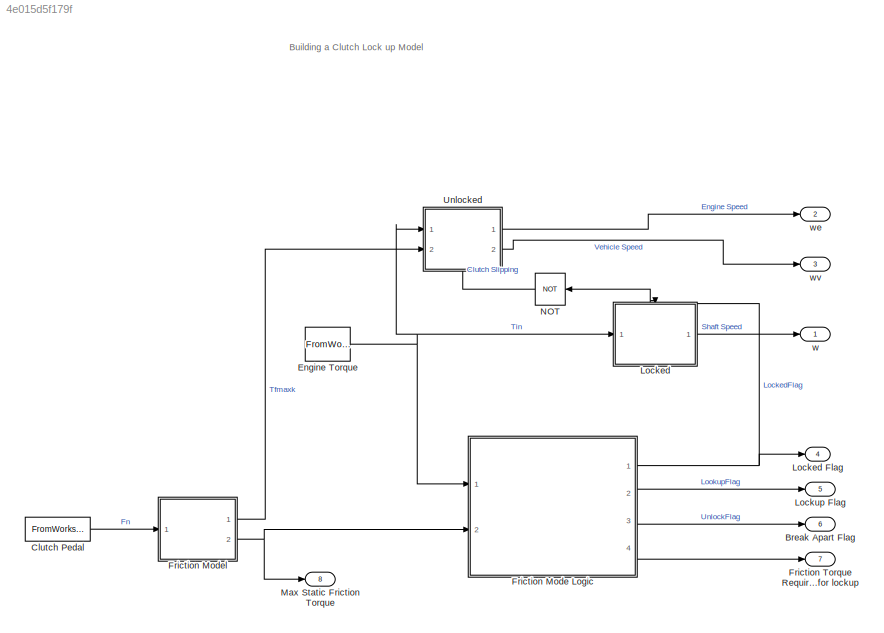
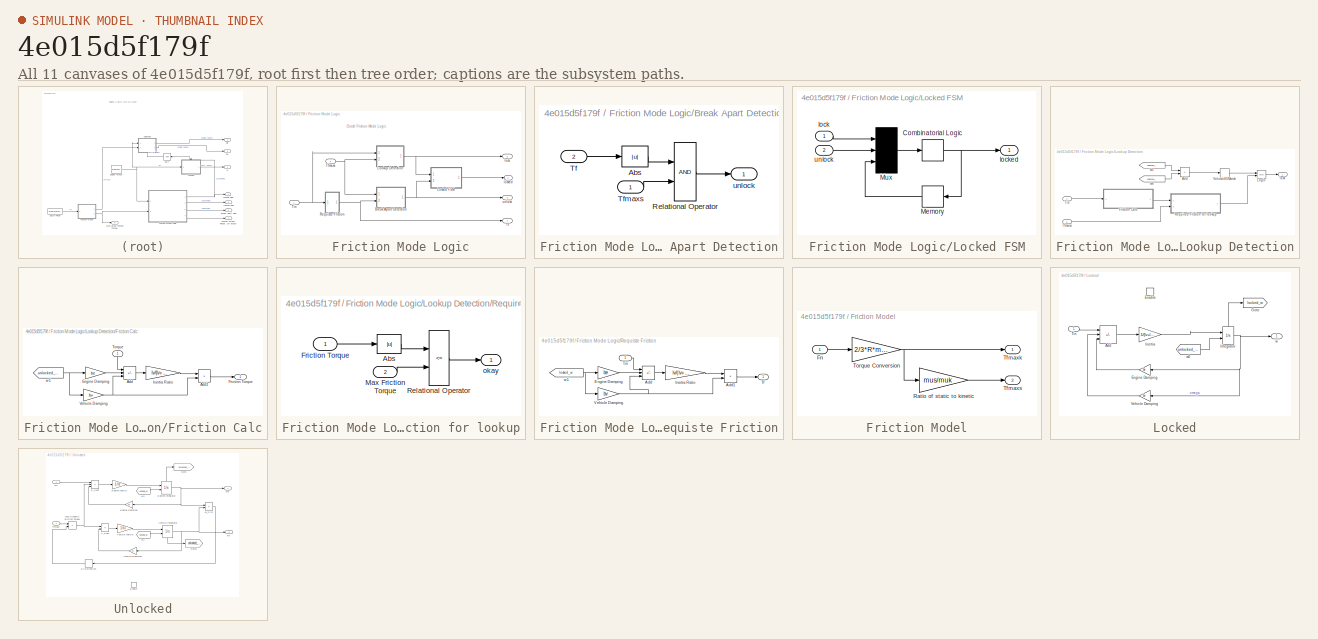
[diagram: thumbnail index - all 11 canvases of the model, root first then tree order]
MODEL slx_4e015d5f179f
KIND model
CONFIG AbsTol = auto
CONFIG EnableMultiTasking = off
CONFIG FixedStep = auto
CONFIG MaxStep = auto
CONFIG MinStep = auto
CONFIG PreLoadFcn = R=1;\nbe=2;\nbv=1;\nIe=1;\nIv=5;
CONFIG RelTol = 1e-3
CONFIG SampleTimeConstraint = Unconstrained
CONFIG SolverName = VariableStepAuto
CONFIG StartTime = 0.0
CONFIG StopTime = 10.0
WORKSPACE source: mxarray member
WORKSPACE Fn: Simulink.Parameter (value not decoded)
WORKSPACE R: Simulink.Parameter (value not decoded)
WORKSPACE Tin: Simulink.Parameter (value not decoded)
WORKSPACE be: Simulink.Parameter (value not decoded)
WORKSPACE bv: Simulink.Parameter (value not decoded)
WORKSPACE f1: Simulink.Parameter (value not decoded)
WORKSPACE le: Simulink.Parameter (value not decoded)
WORKSPACE lv: Simulink.Parameter (value not decoded)
WORKSPACE muk: Simulink.Parameter (value not decoded)
WORKSPACE mus: Simulink.Parameter (value not decoded)
BLOCK [Outport] Break Apart Flag
  Port = 6
BLOCK [FromWorkspace] Clutch Pedal
  VariableName = Fn
BLOCK [FromWorkspace] Engine Torque
  VariableName = Tin
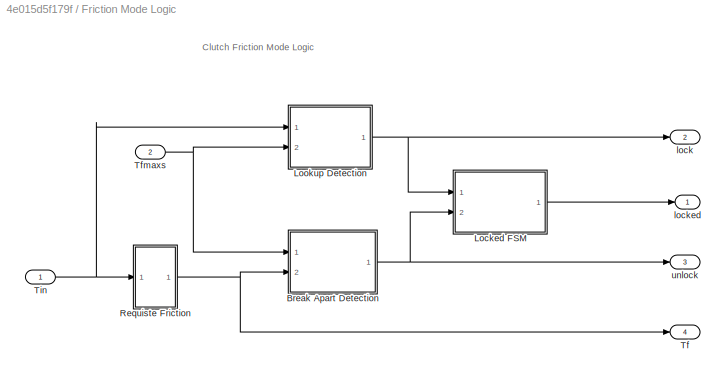
BLOCK [SubSystem] Friction Mode Logic
  Ports = [2, 4]
  RequestExecContextInheritance = off
BLOCK [SubSystem] Friction Mode Logic/Break Apart Detection
  Ports = [2, 1]
  RequestExecContextInheritance = off
BLOCK [Abs] Friction Mode Logic/Break Apart Detection/Abs
BLOCK [RelationalOperator] Friction Mode Logic/Break Apart Detection/Relational Operator
  OutDataTypeStr = boolean
  Ports = [2, 1]
BLOCK [Inport] Friction Mode Logic/Break Apart Detection/Tf
  Port = 2
BLOCK [Inport] Friction Mode Logic/Break Apart Detection/Tfmaxs
BLOCK [Outport] Friction Mode Logic/Break Apart Detection/unlock
  InitialOutput = 0
  VectorParamsAs1DForOutWhenUnconnected = off
BLOCK [SubSystem] Friction Mode Logic/Locked FSM
  Ports = [2, 1]
  RequestExecContextInheritance = off
BLOCK [CombinatorialLogic] Friction Mode Logic/Locked FSM/Combinatorial Logic
  TruthTable = [0;1;0;0;1;1;1;0]
BLOCK [Memory] Friction Mode Logic/Locked FSM/Memory
BLOCK [Mux] Friction Mode Logic/Locked FSM/Mux
  Inputs = 3
  Ports = [3, 1]
BLOCK [Inport] Friction Mode Logic/Locked FSM/lock
  NameLocation = top
BLOCK [Outport] Friction Mode Logic/Locked FSM/locked
  InitialOutput = 0
  VectorParamsAs1DForOutWhenUnconnected = off
BLOCK [Inport] Friction Mode Logic/Locked FSM/unlock
  Port = 2
BLOCK [SubSystem] Friction Mode Logic/Lookup Detection
  Ports = [2, 1]
  RequestExecContextInheritance = off
BLOCK [Sum] Friction Mode Logic/Lookup Detection/Add
  IconShape = rectangular
  Inputs = +-
  Ports = [2, 1]
BLOCK [SubSystem] Friction Mode Logic/Lookup Detection/Friction Calc
  Ports = [1, 1]
  RequestExecContextInheritance = off
BLOCK [Sum] Friction Mode Logic/Lookup Detection/Friction Calc/Add
  IconShape = rectangular
  Inputs = +--
  Ports = [3, 1]
BLOCK [Sum] Friction Mode Logic/Lookup Detection/Friction Calc/Add1
  IconShape = rectangular
  Ports = [2, 1]
BLOCK [Gain] Friction Mode Logic/Lookup Detection/Friction Calc/Engine Damping
  Gain = be
  NameLocation = top
  OutDataTypeStr = Inherit: Same as input
  ParamDataTypeStr = Inherit: Same as input
  SaturateOnIntegerOverflow = on
BLOCK [Outport] Friction Mode Logic/Lookup Detection/Friction Calc/Friction Torque
  InitialOutput = 0
  VectorParamsAs1DForOutWhenUnconnected = off
BLOCK [Gain] Friction Mode Logic/Lookup Detection/Friction Calc/Inertia Ratio
  Gain = lv/(lv+le)
  OutDataTypeStr = Inherit: Same as input
  ParamDataTypeStr = Inherit: Same as input
  SaturateOnIntegerOverflow = on
BLOCK [Inport] Friction Mode Logic/Lookup Detection/Friction Calc/Torque
  NameLocation = left
BLOCK [Gain] Friction Mode Logic/Lookup Detection/Friction Calc/Vehicle Damping
  Gain = bv
  OutDataTypeStr = Inherit: Same as input
  ParamDataTypeStr = Inherit: Same as input
  SaturateOnIntegerOverflow = on
BLOCK [From] Friction Mode Logic/Lookup Detection/Friction Calc/w1
  GotoTag = unlocked_we
BLOCK [Logic] Friction Mode Logic/Lookup Detection/Logic
  AttributesFormatString = (%<Operator>)
  IconShape = distinctive
  OutDataTypeStr = boolean
  Ports = [2, 1]
BLOCK [SubSystem] Friction Mode Logic/Lookup Detection/Required Friction for lookup
  Ports = [2, 1]
  RequestExecContextInheritance = off
BLOCK [Abs] Friction Mode Logic/Lookup Detection/Required Friction for lookup/Abs
BLOCK [Inport] Friction Mode Logic/Lookup Detection/Required Friction for lookup/Friction Torque
BLOCK [Inport] Friction Mode Logic/Lookup Detection/Required Friction for lookup/Max Friction Torque
  Port = 2
BLOCK [RelationalOperator] Friction Mode Logic/Lookup Detection/Required Friction for lookup/Relational Operator
  Operator = <=
  OutDataTypeStr = boolean
  Ports = [2, 1]
BLOCK [Outport] Friction Mode Logic/Lookup Detection/Required Friction for lookup/okay
  InitialOutput = 0
  VectorParamsAs1DForOutWhenUnconnected = off
BLOCK [Inport] Friction Mode Logic/Lookup Detection/Tfmaxs
  Port = 2
BLOCK [Inport] Friction Mode Logic/Lookup Detection/Tin
BLOCK [HitCross] Friction Mode Logic/Lookup Detection/Velocities Match
  Ports = [1, 1]
BLOCK [Outport] Friction Mode Logic/Lookup Detection/lock
  InitialOutput = 0
  VectorParamsAs1DForOutWhenUnconnected = off
BLOCK [From] Friction Mode Logic/Lookup Detection/w1
  GotoTag = unlocked_we
BLOCK [From] Friction Mode Logic/Lookup Detection/w6
  GotoTag = unlocked_wv
BLOCK [SubSystem] Friction Mode Logic/Requiste Friction
  Ports = [1, 1]
  RequestExecContextInheritance = off
BLOCK [Sum] Friction Mode Logic/Requiste Friction/Add
  IconShape = rectangular
  Inputs = +--
  Ports = [3, 1]
BLOCK [Sum] Friction Mode Logic/Requiste Friction/Add1
  IconShape = rectangular
  Ports = [2, 1]
BLOCK [Gain] Friction Mode Logic/Requiste Friction/Engine Damping
  Gain = be
  NameLocation = top
  OutDataTypeStr = Inherit: Same as input
  ParamDataTypeStr = Inherit: Same as input
  SaturateOnIntegerOverflow = on
BLOCK [Gain] Friction Mode Logic/Requiste Friction/Inertia Ratio
  Gain = lv/(lv+le)
  OutDataTypeStr = Inherit: Same as input
  ParamDataTypeStr = Inherit: Same as input
  SaturateOnIntegerOverflow = on
BLOCK [Outport] Friction Mode Logic/Requiste Friction/Tf
  InitialOutput = 0
  VectorParamsAs1DForOutWhenUnconnected = off
BLOCK [Inport] Friction Mode Logic/Requiste Friction/Tin
BLOCK [Gain] Friction Mode Logic/Requiste Friction/Vehicle Damping
  Gain = bv
  OutDataTypeStr = Inherit: Same as input
  ParamDataTypeStr = Inherit: Same as input
  SaturateOnIntegerOverflow = on
BLOCK [From] Friction Mode Logic/Requiste Friction/w1
  GotoTag = locked_w
  NameLocation = top
BLOCK [Outport] Friction Mode Logic/Tf
  Port = 4
BLOCK [Inport] Friction Mode Logic/Tfmaxs
  Port = 2
BLOCK [Inport] Friction Mode Logic/Tin
BLOCK [Outport] Friction Mode Logic/lock
  Port = 2
BLOCK [Outport] Friction Mode Logic/locked
  InitialOutput = 0
  VectorParamsAs1DForOutWhenUnconnected = off
BLOCK [Outport] Friction Mode Logic/unlock
  Port = 3
BLOCK [SubSystem] Friction Model
  Ports = [1, 2]
  RequestExecContextInheritance = off
BLOCK [Inport] Friction Model/Fn
BLOCK [Gain] Friction Model/Ratio of static to kinetic
  Gain = mus/muk
  OutDataTypeStr = Inherit: Same as input
  ParamDataTypeStr = Inherit: Same as input
  SaturateOnIntegerOverflow = on
BLOCK [Outport] Friction Model/Tfmaxk
  InitialOutput = 0
  VectorParamsAs1DForOutWhenUnconnected = off
BLOCK [Outport] Friction Model/Tfmaxs
  InitialOutput = 0
  Port = 2
  VectorParamsAs1DForOutWhenUnconnected = off
BLOCK [Gain] Friction Model/Torque Conversion
  Gain = 2/3*R*muk
  OutDataTypeStr = Inherit: Same as input
  ParamDataTypeStr = Inherit: Same as input
  SaturateOnIntegerOverflow = on
BLOCK [Outport] Friction Torque Required for lockup 
  Port = 7
BLOCK [SubSystem] Locked
  Ports = [1, 1, 1]
  RequestExecContextInheritance = off
BLOCK [Outport] Locked Flag
  InitialOutput = 0
  Port = 4
  VectorParamsAs1DForOutWhenUnconnected = off
BLOCK [Sum] Locked/Add
  IconShape = rectangular
  Inputs = +--
  Ports = [3, 1]
BLOCK [EnablePort] Locked/Enable
  Ports = []
BLOCK [Gain] Locked/Engine Damping
  Gain = be
BLOCK [Goto] Locked/Goto
  GotoTag = locked_w
BLOCK [Gain] Locked/Inertia
  Gain = 1/(lv+le)
BLOCK [Integrator] Locked/Integrator
  InitialConditionSource = external
  Ports = [2, 1, 0, 0, 1]
  ShowStatePort = on
BLOCK [Inport] Locked/Tin
BLOCK [Gain] Locked/Vehicle Damping
  Gain = bv
BLOCK [Outport] Locked/w
BLOCK [From] Locked/w0
  GotoTag = unlocked_we
BLOCK [Outport] Lockup Flag
  Port = 5
BLOCK [Outport] Max Static Friction Torque
  Port = 8
BLOCK [Logic] NOT
  AllPortsSameDT = off
  IconShape = distinctive
  NameLocation = top
  Operator = NOT
  OutDataTypeStr = boolean
  Ports = [1, 1]
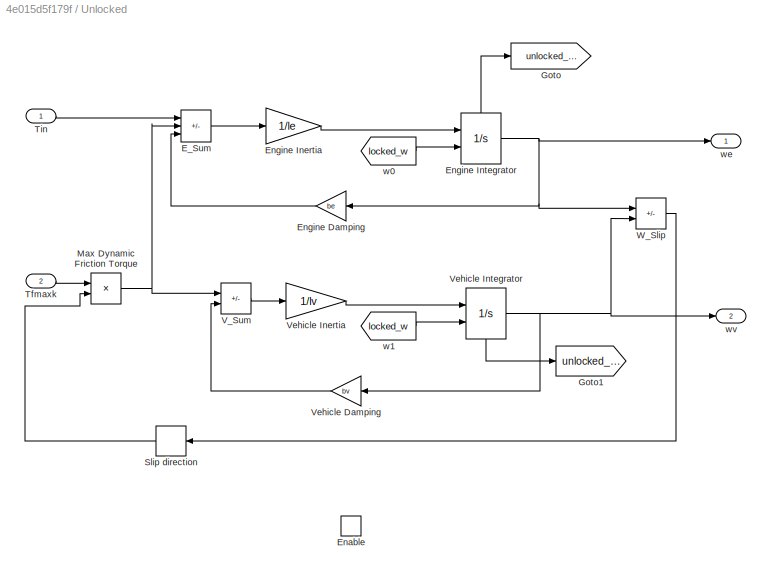
BLOCK [SubSystem] Unlocked
  NameLocation = top
  Ports = [2, 2, 1]
  RequestExecContextInheritance = off
BLOCK [Sum] Unlocked/E_Sum
  IconShape = rectangular
  Inputs = +--
  Ports = [3, 1]
BLOCK [EnablePort] Unlocked/Enable
  Ports = []
BLOCK [Gain] Unlocked/Engine Damping
  Gain = be
BLOCK [Gain] Unlocked/Engine Inertia
  Gain = 1/le
BLOCK [Integrator] Unlocked/Engine Integrator
  InitialConditionSource = external
  Ports = [2, 1, 0, 0, 1]
  ShowStatePort = on
BLOCK [Goto] Unlocked/Goto
  GotoTag = unlocked_we
BLOCK [Goto] Unlocked/Goto1
  GotoTag = unlocked_wv
BLOCK [Product] Unlocked/Max Dynamic Friction Torque
  Ports = [2, 1]
BLOCK [Signum] Unlocked/Slip direction
  ZeroCross = off
BLOCK [Inport] Unlocked/Tfmaxk
  Port = 2
BLOCK [Inport] Unlocked/Tin
BLOCK [Sum] Unlocked/V_Sum
  IconShape = rectangular
  Inputs = +-
  Ports = [2, 1]
BLOCK [Gain] Unlocked/Vehicle Damping
  Gain = bv
BLOCK [Gain] Unlocked/Vehicle Inertia
  Gain = 1/lv
BLOCK [Integrator] Unlocked/Vehicle Integrator
  InitialConditionSource = external
  NameLocation = top
  Ports = [2, 1, 0, 0, 1]
  ShowStatePort = on
BLOCK [Sum] Unlocked/W_Slip
  IconShape = rectangular
  Inputs = +-
  Ports = [2, 1]
BLOCK [From] Unlocked/w0
  GotoTag = locked_w
BLOCK [From] Unlocked/w1
  GotoTag = locked_w
BLOCK [Outport] Unlocked/we
BLOCK [Outport] Unlocked/wv
  Port = 2
BLOCK [Outport] w
BLOCK [Outport] we
  Port = 2
BLOCK [Outport] wv
  Port = 3
ANNOTATION (root): Building a Clutch Lock up Model
ANNOTATION Friction Mode Logic: Clutch Friction Mode Logic
LINE Clutch Pedal:1 -> Friction Model:1
NET Engine Torque:1 -> Friction Mode Logic:1, Locked:1, Unlocked:1
LINE Friction Mode Logic/Break Apart Detection/Abs:1 -> Friction Mode Logic/Break Apart Detection/Relational Operator:1
LINE Friction Mode Logic/Break Apart Detection/Relational Operator:1 -> Friction Mode Logic/Break Apart Detection/unlock:1
LINE Friction Mode Logic/Break Apart Detection/Tf:1 -> Friction Mode Logic/Break Apart Detection/Abs:1
LINE Friction Mode Logic/Break Apart Detection/Tfmaxs:1 -> Friction Mode Logic/Break Apart Detection/Relational Operator:2
NET Friction Mode Logic/Break Apart Detection:1 -> Friction Mode Logic/Locked FSM:2, Friction Mode Logic/unlock:1
NET Friction Mode Logic/Locked FSM/Combinatorial Logic:1 -> Friction Mode Logic/Locked FSM/Memory:1, Friction Mode Logic/Locked FSM/locked:1
LINE Friction Mode Logic/Locked FSM/Memory:1 -> Friction Mode Logic/Locked FSM/Mux:3
LINE Friction Mode Logic/Locked FSM/Mux:1 -> Friction Mode Logic/Locked FSM/Combinatorial Logic:1
LINE Friction Mode Logic/Locked FSM/lock:1 -> Friction Mode Logic/Locked FSM/Mux:1
LINE Friction Mode Logic/Locked FSM/unlock:1 -> Friction Mode Logic/Locked FSM/Mux:2
LINE Friction Mode Logic/Locked FSM:1 -> Friction Mode Logic/locked:1
LINE Friction Mode Logic/Lookup Detection/Add:1 -> Friction Mode Logic/Lookup Detection/Velocities Match:1
LINE Friction Mode Logic/Lookup Detection/Friction Calc/Add1:1 -> Friction Mode Logic/Lookup Detection/Friction Calc/Friction Torque:1
LINE Friction Mode Logic/Lookup Detection/Friction Calc/Add:1 -> Friction Mode Logic/Lookup Detection/Friction Calc/Inertia Ratio:1
LINE Friction Mode Logic/Lookup Detection/Friction Calc/Engine Damping:1 -> Friction Mode Logic/Lookup Detection/Friction Calc/Add:2
LINE Friction Mode Logic/Lookup Detection/Friction Calc/Inertia Ratio:1 -> Friction Mode Logic/Lookup Detection/Friction Calc/Add1:1
LINE Friction Mode Logic/Lookup Detection/Friction Calc/Torque:1 -> Friction Mode Logic/Lookup Detection/Friction Calc/Add:1
NET Friction Mode Logic/Lookup Detection/Friction Calc/Vehicle Damping:1 -> Friction Mode Logic/Lookup Detection/Friction Calc/Add1:2, Friction Mode Logic/Lookup Detection/Friction Calc/Add:3
NET Friction Mode Logic/Lookup Detection/Friction Calc/w1:1 -> Friction Mode Logic/Lookup Detection/Friction Calc/Engine Damping:1, Friction Mode Logic/Lookup Detection/Friction Calc/Vehicle Damping:1
LINE Friction Mode Logic/Lookup Detection/Friction Calc:1 -> Friction Mode Logic/Lookup Detection/Required Friction for lookup:1
LINE Friction Mode Logic/Lookup Detection/Logic:1 -> Friction Mode Logic/Lookup Detection/lock:1
LINE Friction Mode Logic/Lookup Detection/Required Friction for lookup/Abs:1 -> Friction Mode Logic/Lookup Detection/Required Friction for lookup/Relational Operator:1
LINE Friction Mode Logic/Lookup Detection/Required Friction for lookup/Friction Torque:1 -> Friction Mode Logic/Lookup Detection/Required Friction for lookup/Abs:1
LINE Friction Mode Logic/Lookup Detection/Required Friction for lookup/Max Friction Torque:1 -> Friction Mode Logic/Lookup Detection/Required Friction for lookup/Relational Operator:2
LINE Friction Mode Logic/Lookup Detection/Required Friction for lookup/Relational Operator:1 -> Friction Mode Logic/Lookup Detection/Required Friction for lookup/okay:1
LINE Friction Mode Logic/Lookup Detection/Required Friction for lookup:1 -> Friction Mode Logic/Lookup Detection/Logic:2
LINE Friction Mode Logic/Lookup Detection/Tfmaxs:1 -> Friction Mode Logic/Lookup Detection/Required Friction for lookup:2
LINE Friction Mode Logic/Lookup Detection/Tin:1 -> Friction Mode Logic/Lookup Detection/Friction Calc:1
LINE Friction Mode Logic/Lookup Detection/Velocities Match:1 -> Friction Mode Logic/Lookup Detection/Logic:1
LINE Friction Mode Logic/Lookup Detection/w1:1 -> Friction Mode Logic/Lookup Detection/Add:1
LINE Friction Mode Logic/Lookup Detection/w6:1 -> Friction Mode Logic/Lookup Detection/Add:2
NET Friction Mode Logic/Lookup Detection:1 -> Friction Mode Logic/Locked FSM:1, Friction Mode Logic/lock:1
LINE Friction Mode Logic/Requiste Friction/Add1:1 -> Friction Mode Logic/Requiste Friction/Tf:1
LINE Friction Mode Logic/Requiste Friction/Add:1 -> Friction Mode Logic/Requiste Friction/Inertia Ratio:1
LINE Friction Mode Logic/Requiste Friction/Engine Damping:1 -> Friction Mode Logic/Requiste Friction/Add:2
LINE Friction Mode Logic/Requiste Friction/Inertia Ratio:1 -> Friction Mode Logic/Requiste Friction/Add1:1
LINE Friction Mode Logic/Requiste Friction/Tin:1 -> Friction Mode Logic/Requiste Friction/Add:1
NET Friction Mode Logic/Requiste Friction/Vehicle Damping:1 -> Friction Mode Logic/Requiste Friction/Add1:2, Friction Mode Logic/Requiste Friction/Add:3
NET Friction Mode Logic/Requiste Friction/w1:1 -> Friction Mode Logic/Requiste Friction/Engine Damping:1, Friction Mode Logic/Requiste Friction/Vehicle Damping:1
NET Friction Mode Logic/Requiste Friction:1 -> Friction Mode Logic/Break Apart Detection:2, Friction Mode Logic/Tf:1
NET Friction Mode Logic/Tfmaxs:1 -> Friction Mode Logic/Break Apart Detection:1, Friction Mode Logic/Lookup Detection:2
NET Friction Mode Logic/Tin:1 -> Friction Mode Logic/Lookup Detection:1, Friction Mode Logic/Requiste Friction:1
NET Friction Mode Logic:1 -> Locked Flag:1, Locked:enable, NOT:1
LINE Friction Mode Logic:2 -> Lockup Flag:1
LINE Friction Mode Logic:3 -> Break Apart Flag:1
LINE Friction Mode Logic:4 -> Friction Torque Required for lockup :1
LINE Friction Model/Fn:1 -> Friction Model/Torque Conversion:1
LINE Friction Model/Ratio of static to kinetic:1 -> Friction Model/Tfmaxs:1
NET Friction Model/Torque Conversion:1 -> Friction Model/Ratio of static to kinetic:1, Friction Model/Tfmaxk:1
LINE Friction Model:1 -> Unlocked:2
NET Friction Model:2 -> Friction Mode Logic:2, Max Static Friction Torque:1
LINE Locked/Add:1 -> Locked/Inertia:1
LINE Locked/Engine Damping:1 -> Locked/Add:3
LINE Locked/Inertia:1 -> Locked/Integrator:1
NET Locked/Integrator:1 -> Locked/Engine Damping:1, Locked/Vehicle Damping:1, Locked/w:1
LINE Locked/Integrator:state -> Locked/Goto:1
LINE Locked/Tin:1 -> Locked/Add:1
LINE Locked/Vehicle Damping:1 -> Locked/Add:2
LINE Locked/w0:1 -> Locked/Integrator:2
LINE Locked:1 -> w:1
LINE NOT:1 -> Unlocked:enable
LINE Unlocked/E_Sum:1 -> Unlocked/Engine Inertia:1
LINE Unlocked/Engine Damping:1 -> Unlocked/E_Sum:3
LINE Unlocked/Engine Inertia:1 -> Unlocked/Engine Integrator:1
NET Unlocked/Engine Integrator:1 -> Unlocked/Engine Damping:1, Unlocked/W_Slip:1, Unlocked/we:1
LINE Unlocked/Engine Integrator:state -> Unlocked/Goto:1
NET Unlocked/Max Dynamic Friction Torque:1 -> Unlocked/E_Sum:2, Unlocked/V_Sum:1
LINE Unlocked/Slip direction:1 -> Unlocked/Max Dynamic Friction Torque:2
LINE Unlocked/Tfmaxk:1 -> Unlocked/Max Dynamic Friction Torque:1
LINE Unlocked/Tin:1 -> Unlocked/E_Sum:1
LINE Unlocked/V_Sum:1 -> Unlocked/Vehicle Inertia:1
LINE Unlocked/Vehicle Damping:1 -> Unlocked/V_Sum:2
LINE Unlocked/Vehicle Inertia:1 -> Unlocked/Vehicle Integrator:1
NET Unlocked/Vehicle Integrator:1 -> Unlocked/Vehicle Damping:1, Unlocked/W_Slip:2, Unlocked/wv:1
LINE Unlocked/Vehicle Integrator:state -> Unlocked/Goto1:1
LINE Unlocked/W_Slip:1 -> Unlocked/Slip direction:1
LINE Unlocked/w0:1 -> Unlocked/Engine Integrator:2
LINE Unlocked/w1:1 -> Unlocked/Vehicle Integrator:2
LINE Unlocked:1 -> we:1
LINE Unlocked:2 -> wv:1
note: NET lines group one-source signal fan-out (src -> all destinations, sorted); 1:1 wires keep LINE
